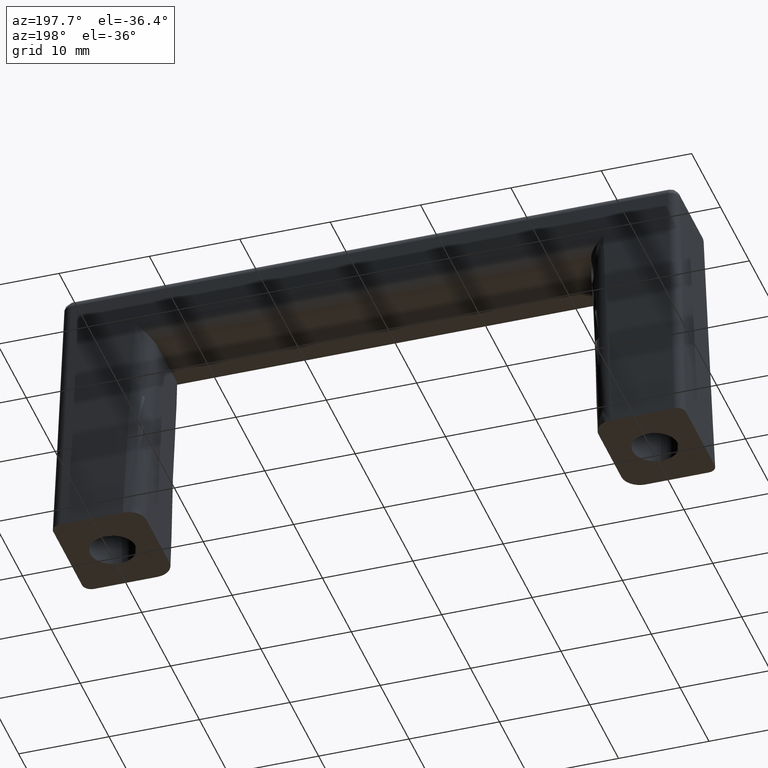
[diagram: clean part render]
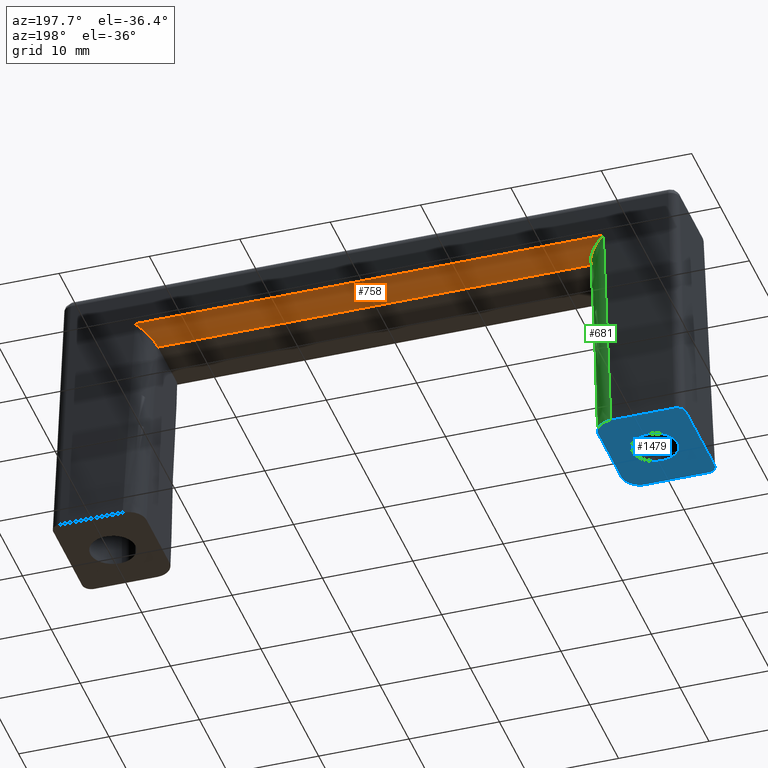
[diagram: same view with three faces highlighted in distinct colors, each labeled with its STEP entity id]
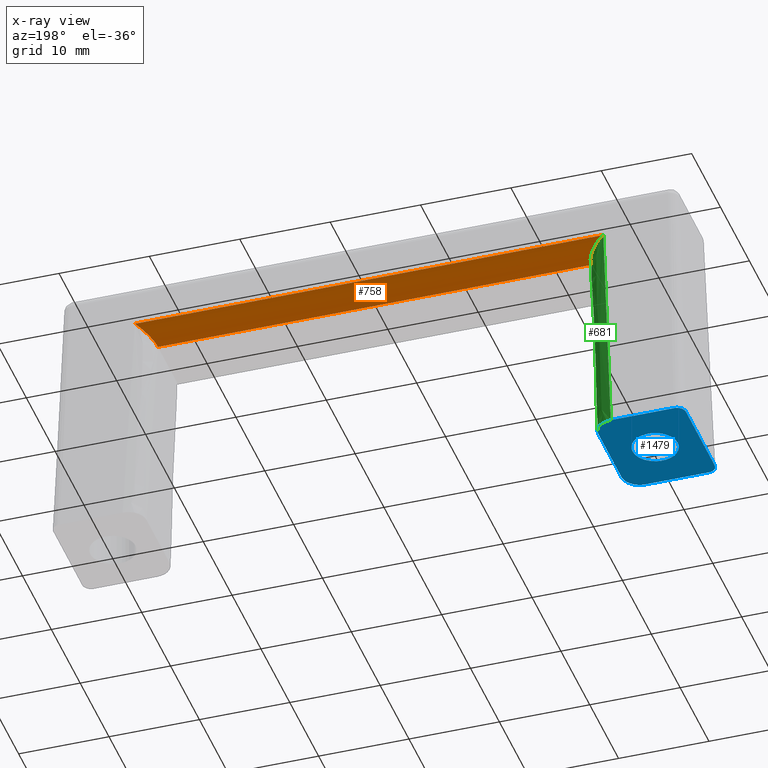
[diagram: x-ray of the same camera — body ghosted, the three highlighted faces saturated]
A machine part, auxiliary view with three faces highlighted in distinct colors.
The next image is the same camera in x-ray (body ghosted, the three faces saturated) — at least one of them is partly hidden behind the body in this view.
Their STEP definitions:

[orange] entity #758 — the highlighted face is a freeform B-spline surface patch.
#631=CARTESIAN_POINT('',(-25.914932944908202,5.164243686676070,25.066645707369648));
#632=VERTEX_POINT('',#631);
#633=CARTESIAN_POINT('',(-23.999955810935749,3.229106748411130,23.001016348478050));
#634=VERTEX_POINT('',#633);
#635=CARTESIAN_POINT('',(-25.914932944908202,5.164243686676070,25.066645707369648));
#636=CARTESIAN_POINT('',(-25.120910515298743,5.191877430314301,24.237830973333875));
#637=CARTESIAN_POINT('',(-24.559858508459222,4.624918929734604,23.632640718041969));
#638=CARTESIAN_POINT('',(-23.998806501619686,4.057960429154906,23.027450462750064));
#639=CARTESIAN_POINT('',(-23.999955810935749,3.229106748411130,23.001016348478050));
#647=(BOUNDED_CURVE()B_SPLINE_CURVE(2,(#635,#636,#637,#638,#639),.UNSPECIFIED.,.F.,.U.)B_SPLINE_CURVE_WITH_KNOTS((3,2,3),(0.0,0.500000000000000,1.0),.UNSPECIFIED.)CURVE()GEOMETRIC_REPRESENTATION_ITEM()RATIONAL_B_SPLINE_CURVE((1.0,0.923741001655843,1.0,0.923741001655843,1.0))REPRESENTATION_ITEM(''));
#648=EDGE_CURVE('',#632,#634,#647,.T.);
#682=CARTESIAN_POINT('',(-27.210679592153610,5.161624004522798,25.122097079069711));
#683=CARTESIAN_POINT('',(27.243073258334590,5.161624004522798,25.122097079069711));
#684=CARTESIAN_POINT('',(-27.210679592153607,5.301085038052120,22.841929336317779));
#685=CARTESIAN_POINT('',(27.243073258334597,5.301085038052120,22.841929336317779));
#686=CARTESIAN_POINT('',(-27.210679592153610,3.022491891252872,23.005108949992415));
#687=CARTESIAN_POINT('',(27.243073258334594,3.022491891252872,23.005108949992415));
#695=(BOUNDED_SURFACE()B_SPLINE_SURFACE(1,2,((#682,#684,#686),(#683,#685,#687)),.UNSPECIFIED.,.F.,.F.,.U.)B_SPLINE_SURFACE_WITH_KNOTS((2,2),(3,3),(0.0,54.453752850488200),(0.0,3.628798131999762),.UNSPECIFIED.)GEOMETRIC_REPRESENTATION_ITEM()RATIONAL_B_SPLINE_SURFACE(((1.0,0.657662365586258,0.996808275235444),(1.0,0.657662365586258,0.996808275235444)))REPRESENTATION_ITEM('')SURFACE());
#696=CARTESIAN_POINT('',(-24.0,3.165354407679065,23.0));
#697=VERTEX_POINT('',#696);
#698=CARTESIAN_POINT('',(24.0,3.165354407679065,23.0));
#699=VERTEX_POINT('',#698);
#700=CARTESIAN_POINT('',(-24.0,3.165354407679065,23.0));
#701=CARTESIAN_POINT('',(24.0,3.165354407679065,23.0));
#702=QUASI_UNIFORM_CURVE('',1,(#700,#701),.UNSPECIFIED.,.F.,.U.);
#703=EDGE_CURVE('',#697,#699,#702,.T.);
#704=ORIENTED_EDGE('',*,*,#703,.F.);
#705=CARTESIAN_POINT('',(-23.999955810935749,3.229106748411130,23.001016348478050));
#706=CARTESIAN_POINT('',(-23.999999999928527,3.197238731033887,23.000000001645841));
#707=CARTESIAN_POINT('',(-24.0,3.165354407679065,23.0));
#715=(BOUNDED_CURVE()B_SPLINE_CURVE(2,(#705,#706,#707),.UNSPECIFIED.,.F.,.U.)CURVE()GEOMETRIC_REPRESENTATION_ITEM()QUASI_UNIFORM_CURVE()RATIONAL_B_SPLINE_CURVE((1.0,0.999872948781787,1.0))REPRESENTATION_ITEM(''));
#716=EDGE_CURVE('',#634,#697,#715,.T.);
#717=ORIENTED_EDGE('',*,*,#716,.F.);
#718=ORIENTED_EDGE('',*,*,#648,.F.);
#719=CARTESIAN_POINT('',(25.914932944908049,5.164243686676070,25.066645707369648));
#720=VERTEX_POINT('',#719);
#721=CARTESIAN_POINT('',(25.914932944908049,5.164243686676070,25.066645707369648));
#722=CARTESIAN_POINT('',(-25.914932944908202,5.164243686676070,25.066645707369648));
#723=QUASI_UNIFORM_CURVE('',1,(#721,#722),.UNSPECIFIED.,.F.,.U.);
#724=EDGE_CURVE('',#720,#632,#723,.T.);
#725=ORIENTED_EDGE('',*,*,#724,.F.);
#726=CARTESIAN_POINT('',(23.999955810935749,3.229106748411130,23.001016348478050));
#727=VERTEX_POINT('',#726);
#728=CARTESIAN_POINT('',(25.914932944908049,5.164243686676070,25.066645707369648));
#729=CARTESIAN_POINT('',(25.120910515298547,5.191877430314301,24.237830973333875));
#730=CARTESIAN_POINT('',(24.559858508459019,4.624918929734604,23.632640718041969));
#731=CARTESIAN_POINT('',(23.998806501619509,4.057960429154906,23.027450462750064));
#732=CARTESIAN_POINT('',(23.999955810935749,3.229106748411130,23.001016348478050));
#740=(BOUNDED_CURVE()B_SPLINE_CURVE(2,(#728,#729,#730,#731,#732),.UNSPECIFIED.,.F.,.U.)B_SPLINE_CURVE_WITH_KNOTS((3,2,3),(0.0,0.500000000000000,1.0),.UNSPECIFIED.)CURVE()GEOMETRIC_REPRESENTATION_ITEM()RATIONAL_B_SPLINE_CURVE((1.0,0.923741001655843,1.0,0.923741001655843,1.0))REPRESENTATION_ITEM(''));
#741=EDGE_CURVE('',#720,#727,#740,.T.);
#742=ORIENTED_EDGE('',*,*,#741,.T.);
#743=CARTESIAN_POINT('',(23.999999999999979,3.165354407679065,23.0));
#744=CARTESIAN_POINT('',(23.999999999999986,3.197238679424541,23.0));
#745=CARTESIAN_POINT('',(23.999955810935749,3.229106748411130,23.001016348478050));
#753=(BOUNDED_CURVE()B_SPLINE_CURVE(2,(#743,#744,#745),.UNSPECIFIED.,.F.,.U.)CURVE()GEOMETRIC_REPRESENTATION_ITEM()QUASI_UNIFORM_CURVE()RATIONAL_B_SPLINE_CURVE((1.0,0.999872948367296,1.0))REPRESENTATION_ITEM(''));
#754=EDGE_CURVE('',#699,#727,#753,.T.);
#755=ORIENTED_EDGE('',*,*,#754,.F.);
#756=EDGE_LOOP('',(#704,#717,#718,#725,#742,#755));
#757=FACE_OUTER_BOUND('',#756,.T.);
#758=ADVANCED_FACE('',(#757),#695,.T.);

[blue] entity #1479 — the highlighted face is a freeform B-spline surface patch.
#271=CARTESIAN_POINT('',(-30.295085586704101,2.482523815901765,-3.407314E-016));
#272=VERTEX_POINT('',#271);
#278=CARTESIAN_POINT('',(-27.500000000000000,-7.105427E-015,0.0));
#279=VERTEX_POINT('',#278);
#280=CARTESIAN_POINT('',(-30.295085586704101,2.482523815901765,-3.407314E-016));
#281=CARTESIAN_POINT('',(-30.148060299192633,2.499999999999994,0.0));
#282=CARTESIAN_POINT('',(-30.0,2.499999999999993,0.0));
#283=CARTESIAN_POINT('',(-27.500000000000004,2.499999999999993,0.0));
#284=CARTESIAN_POINT('',(-27.500000000000000,-7.105427E-015,0.0));
#292=(BOUNDED_CURVE()B_SPLINE_CURVE(2,(#280,#281,#282,#283,#284),.UNSPECIFIED.,.F.,.U.)B_SPLINE_CURVE_WITH_KNOTS((3,2,3),(0.229562473507176,0.250000000000000,0.500000000000000),.UNSPECIFIED.)CURVE()GEOMETRIC_REPRESENTATION_ITEM()RATIONAL_B_SPLINE_CURVE((0.956026754171287,0.976055948323726,1.0,0.707106781186548,1.0))REPRESENTATION_ITEM(''));
#293=EDGE_CURVE('',#272,#279,#292,.T.);
#295=CARTESIAN_POINT('',(-29.847383236863131,-2.495337276519659,3.885781E-016));
#296=VERTEX_POINT('',#295);
#297=CARTESIAN_POINT('',(-27.500000000000000,-7.105427E-015,0.0));
#298=CARTESIAN_POINT('',(-27.499999999999996,-2.351769497200905,0.0));
#299=CARTESIAN_POINT('',(-29.847383236863131,-2.495337276519660,3.885781E-016));
#307=(BOUNDED_CURVE()B_SPLINE_CURVE(2,(#297,#298,#299),.UNSPECIFIED.,.F.,.U.)B_SPLINE_CURVE_WITH_KNOTS((3,3),(0.500000000000000,0.739333279332626),.UNSPECIFIED.)CURVE()GEOMETRIC_REPRESENTATION_ITEM()RATIONAL_B_SPLINE_CURVE((1.0,0.719603621788352,0.976072721259783))REPRESENTATION_ITEM(''));
#308=EDGE_CURVE('',#279,#296,#307,.T.);
#382=CARTESIAN_POINT('',(-32.500000000000000,-7.105427E-015,0.0));
#383=VERTEX_POINT('',#382);
#384=CARTESIAN_POINT('',(-29.847383236863131,-2.495337276519659,3.885781E-016));
#385=CARTESIAN_POINT('',(-29.923620391032269,-2.500000000000007,0.0));
#386=CARTESIAN_POINT('',(-30.0,-2.500000000000007,0.0));
#387=CARTESIAN_POINT('',(-32.500000000000007,-2.500000000000007,0.0));
#388=CARTESIAN_POINT('',(-32.500000000000000,-7.105427E-015,0.0));
#396=(BOUNDED_CURVE()B_SPLINE_CURVE(2,(#384,#385,#386,#387,#388),.UNSPECIFIED.,.F.,.U.)B_SPLINE_CURVE_WITH_KNOTS((3,2,3),(0.739333279332625,0.750000000000000,1.0),.UNSPECIFIED.)CURVE()GEOMETRIC_REPRESENTATION_ITEM()RATIONAL_B_SPLINE_CURVE((0.976072721259783,0.987503159398195,1.0,0.707106781186548,1.0))REPRESENTATION_ITEM(''));
#397=EDGE_CURVE('',#296,#383,#396,.T.);
#399=CARTESIAN_POINT('',(-32.500000000000000,-7.105427E-015,0.0));
#400=CARTESIAN_POINT('',(-32.500000000000000,2.220436314766362,0.0));
#401=CARTESIAN_POINT('',(-30.295085586704101,2.482523815901765,-3.407314E-016));
#409=(BOUNDED_CURVE()B_SPLINE_CURVE(2,(#399,#400,#401),.UNSPECIFIED.,.F.,.U.)B_SPLINE_CURVE_WITH_KNOTS((3,3),(0.0,0.229562473507176),.UNSPECIFIED.)CURVE()GEOMETRIC_REPRESENTATION_ITEM()RATIONAL_B_SPLINE_CURVE((1.0,0.731050832862822,0.956026754171287))REPRESENTATION_ITEM(''));
#410=EDGE_CURVE('',#383,#272,#409,.T.);
#461=CARTESIAN_POINT('',(-27.004787106098050,-6.0,0.0));
#462=VERTEX_POINT('',#461);
#468=CARTESIAN_POINT('',(-25.0,-3.995992148656645,0.0));
#469=VERTEX_POINT('',#468);
#470=CARTESIAN_POINT('',(-25.000000000000011,-3.995992148656652,0.0));
#471=CARTESIAN_POINT('',(-25.000000000000025,-4.825727232130540,0.0));
#472=CARTESIAN_POINT('',(-25.587364690834129,-5.412863616065280,0.0));
#473=CARTESIAN_POINT('',(-26.174729381668225,-6.000000000000020,0.0));
#474=CARTESIAN_POINT('',(-27.004787106098071,-6.000000000000018,0.0));
#482=(BOUNDED_CURVE()B_SPLINE_CURVE(2,(#470,#471,#472,#473,#474),.UNSPECIFIED.,.F.,.U.)B_SPLINE_CURVE_WITH_KNOTS((3,2,3),(0.0,0.500000000000000,1.0),.UNSPECIFIED.)CURVE()GEOMETRIC_REPRESENTATION_ITEM()RATIONAL_B_SPLINE_CURVE((1.0,0.923740992976639,1.0,0.923740992976639,1.0))REPRESENTATION_ITEM(''));
#483=EDGE_CURVE('',#469,#462,#482,.T.);
#650=CARTESIAN_POINT('',(-25.0,3.995992148656645,0.0));
#651=VERTEX_POINT('',#650);
#657=CARTESIAN_POINT('',(-27.004787106098199,6.0,0.0));
#658=VERTEX_POINT('',#657);
#659=CARTESIAN_POINT('',(-27.004787106098199,6.000000000000003,0.0));
#660=CARTESIAN_POINT('',(-26.174729381668300,5.999999999999995,0.0));
#661=CARTESIAN_POINT('',(-25.587364690834200,5.412863616065188,0.0));
#662=CARTESIAN_POINT('',(-25.000000000000107,4.825727232130380,0.0));
#663=CARTESIAN_POINT('',(-25.0,3.995992148656645,0.0));
#671=(BOUNDED_CURVE()B_SPLINE_CURVE(2,(#659,#660,#661,#662,#663),.UNSPECIFIED.,.F.,.U.)B_SPLINE_CURVE_WITH_KNOTS((3,2,3),(0.0,0.500000000000000,1.0),.UNSPECIFIED.)CURVE()GEOMETRIC_REPRESENTATION_ITEM()RATIONAL_B_SPLINE_CURVE((1.0,0.923740992976635,1.0,0.923740992976635,1.0))REPRESENTATION_ITEM(''));
#672=EDGE_CURVE('',#658,#651,#671,.T.);
#820=CARTESIAN_POINT('',(-34.000555360477847,-6.0,0.0));
#821=VERTEX_POINT('',#820);
#822=CARTESIAN_POINT('',(-35.0,-5.000555131204679,0.0));
#823=VERTEX_POINT('',#822);
#824=CARTESIAN_POINT('',(-34.000555360477890,-5.999999999999956,0.0));
#825=CARTESIAN_POINT('',(-35.000000000000092,-5.999999999999909,0.0));
#826=CARTESIAN_POINT('',(-35.000000000000043,-5.000555131204645,0.0));
#834=(BOUNDED_CURVE()B_SPLINE_CURVE(2,(#824,#825,#826),.UNSPECIFIED.,.F.,.U.)CURVE()GEOMETRIC_REPRESENTATION_ITEM()QUASI_UNIFORM_CURVE()RATIONAL_B_SPLINE_CURVE((1.0,0.707499181415883,1.0))REPRESENTATION_ITEM(''));
#835=EDGE_CURVE('',#821,#823,#834,.T.);
#1301=CARTESIAN_POINT('',(-35.0,5.000555131204790,0.0));
#1302=VERTEX_POINT('',#1301);
#1303=CARTESIAN_POINT('',(-34.000555360477847,6.0,0.0));
#1304=VERTEX_POINT('',#1303);
#1305=CARTESIAN_POINT('',(-35.000000000000043,5.000555131204824,0.0));
#1306=CARTESIAN_POINT('',(-34.999999999999957,5.999999999999996,0.0));
#1307=CARTESIAN_POINT('',(-34.000555360477847,5.999999999999996,0.0));
#1315=(BOUNDED_CURVE()B_SPLINE_CURVE(2,(#1305,#1306,#1307),.UNSPECIFIED.,.F.,.U.)CURVE()GEOMETRIC_REPRESENTATION_ITEM()QUASI_UNIFORM_CURVE()RATIONAL_B_SPLINE_CURVE((1.0,0.707499181415916,1.0))REPRESENTATION_ITEM(''));
#1316=EDGE_CURVE('',#1302,#1304,#1315,.T.);
#1407=CARTESIAN_POINT('',(-27.004787106098050,-6.0,0.0));
#1408=CARTESIAN_POINT('',(-34.000555360477847,-6.0,0.0));
#1409=QUASI_UNIFORM_CURVE('',1,(#1407,#1408),.UNSPECIFIED.,.F.,.U.);
#1410=EDGE_CURVE('',#462,#821,#1409,.T.);
#1433=CARTESIAN_POINT('',(-27.004787106098199,6.0,0.0));
#1434=CARTESIAN_POINT('',(-34.000555360477847,6.0,0.0));
#1435=QUASI_UNIFORM_CURVE('',1,(#1433,#1434),.UNSPECIFIED.,.F.,.U.);
#1436=EDGE_CURVE('',#658,#1304,#1435,.T.);
#1450=CARTESIAN_POINT('',(-35.499499980618047,-6.599399976741672,0.0));
#1451=CARTESIAN_POINT('',(-24.500499751161041,-6.599399976741672,0.0));
#1452=CARTESIAN_POINT('',(-35.499499980618047,6.599400298606754,0.0));
#1453=CARTESIAN_POINT('',(-24.500499751161041,6.599400298606754,0.0));
#1454=B_SPLINE_SURFACE_WITH_KNOTS('',1,1,((#1450,#1452),(#1451,#1453)),.UNSPECIFIED.,.F.,.F.,.U.,(2,2),(2,2),(0.0,10.999000229457010),(0.0,13.198800275348431),.UNSPECIFIED.);
#1455=CARTESIAN_POINT('',(-25.0,3.995992148656645,0.0));
#1456=CARTESIAN_POINT('',(-25.0,-3.995992148656645,0.0));
#1457=QUASI_UNIFORM_CURVE('',1,(#1455,#1456),.UNSPECIFIED.,.F.,.U.);
#1458=EDGE_CURVE('',#651,#469,#1457,.T.);
#1459=ORIENTED_EDGE('',*,*,#1458,.T.);
#1460=ORIENTED_EDGE('',*,*,#483,.T.);
#1461=ORIENTED_EDGE('',*,*,#1410,.T.);
#1462=ORIENTED_EDGE('',*,*,#835,.T.);
#1463=CARTESIAN_POINT('',(-35.0,5.000555131204790,0.0));
#1464=CARTESIAN_POINT('',(-35.0,-5.000555131204679,0.0));
#1465=QUASI_UNIFORM_CURVE('',1,(#1463,#1464),.UNSPECIFIED.,.F.,.U.);
#1466=EDGE_CURVE('',#1302,#823,#1465,.T.);
#1467=ORIENTED_EDGE('',*,*,#1466,.F.);
#1468=ORIENTED_EDGE('',*,*,#1316,.T.);
#1469=ORIENTED_EDGE('',*,*,#1436,.F.);
#1470=ORIENTED_EDGE('',*,*,#672,.T.);
#1471=EDGE_LOOP('',(#1459,#1460,#1461,#1462,#1467,#1468,#1469,#1470));
#1472=FACE_OUTER_BOUND('',#1471,.T.);
#1473=ORIENTED_EDGE('',*,*,#308,.F.);
#1474=ORIENTED_EDGE('',*,*,#293,.F.);
#1475=ORIENTED_EDGE('',*,*,#410,.F.);
#1476=ORIENTED_EDGE('',*,*,#397,.F.);
#1477=EDGE_LOOP('',(#1473,#1474,#1475,#1476));
#1478=FACE_BOUND('',#1477,.T.);
#1479=ADVANCED_FACE('',(#1472,#1478),#1454,.F.);

[green] entity #681 — the highlighted face is a freeform B-spline surface patch.
#617=CARTESIAN_POINT('',(-27.116300472743660,6.018993500121923,-0.623065721724003));
#618=CARTESIAN_POINT('',(-25.971272444643422,5.140927023435969,25.712578924581251));
#619=CARTESIAN_POINT('',(-24.878752728789120,6.116718858752241,-0.717092108887169));
#620=CARTESIAN_POINT('',(-23.733724700688885,5.238652382066287,25.618552537418108));
#621=CARTESIAN_POINT('',(-25.039043495957941,3.881823868725985,-0.784637406239556));
#622=CARTESIAN_POINT('',(-23.894015467857709,3.003757392040036,25.551007240065712));
#630=(BOUNDED_SURFACE()B_SPLINE_SURFACE(1,2,((#617,#619,#621),(#618,#620,#622)),.UNSPECIFIED.,.F.,.F.,.U.)B_SPLINE_SURFACE_WITH_KNOTS((2,2),(3,3),(0.0,26.375144906883119),(0.0,3.583656446260334),.UNSPECIFIED.)GEOMETRIC_REPRESENTATION_ITEM()RATIONAL_B_SPLINE_SURFACE(((1.0,0.664497891295788,0.996265217836209),(1.0,0.664497891295788,0.996265217836209)))REPRESENTATION_ITEM('')SURFACE());
#631=CARTESIAN_POINT('',(-25.914932944908202,5.164243686676070,25.066645707369648));
#632=VERTEX_POINT('',#631);
#633=CARTESIAN_POINT('',(-23.999955810935749,3.229106748411130,23.001016348478050));
#634=VERTEX_POINT('',#633);
#635=CARTESIAN_POINT('',(-25.914932944908202,5.164243686676070,25.066645707369648));
#636=CARTESIAN_POINT('',(-25.120910515298743,5.191877430314301,24.237830973333875));
#637=CARTESIAN_POINT('',(-24.559858508459222,4.624918929734604,23.632640718041969));
#638=CARTESIAN_POINT('',(-23.998806501619686,4.057960429154906,23.027450462750064));
#639=CARTESIAN_POINT('',(-23.999955810935749,3.229106748411130,23.001016348478050));
#647=(BOUNDED_CURVE()B_SPLINE_CURVE(2,(#635,#636,#637,#638,#639),.UNSPECIFIED.,.F.,.U.)B_SPLINE_CURVE_WITH_KNOTS((3,2,3),(0.0,0.500000000000000,1.0),.UNSPECIFIED.)CURVE()GEOMETRIC_REPRESENTATION_ITEM()RATIONAL_B_SPLINE_CURVE((1.0,0.923741001655843,1.0,0.923741001655843,1.0))REPRESENTATION_ITEM(''));
#648=EDGE_CURVE('',#632,#634,#647,.T.);
#649=ORIENTED_EDGE('',*,*,#648,.T.);
#650=CARTESIAN_POINT('',(-25.0,3.995992148656645,0.0));
#651=VERTEX_POINT('',#650);
#652=CARTESIAN_POINT('',(-25.0,3.995992148656645,0.0));
#653=CARTESIAN_POINT('',(-23.999955810935749,3.229106748411130,23.001016348478050));
#654=QUASI_UNIFORM_CURVE('',1,(#652,#653),.UNSPECIFIED.,.F.,.U.);
#655=EDGE_CURVE('',#651,#634,#654,.T.);
#656=ORIENTED_EDGE('',*,*,#655,.F.);
#657=CARTESIAN_POINT('',(-27.004787106098199,6.0,0.0));
#658=VERTEX_POINT('',#657);
#659=CARTESIAN_POINT('',(-27.004787106098199,6.000000000000003,0.0));
#660=CARTESIAN_POINT('',(-26.174729381668300,5.999999999999995,0.0));
#661=CARTESIAN_POINT('',(-25.587364690834200,5.412863616065188,0.0));
#662=CARTESIAN_POINT('',(-25.000000000000107,4.825727232130380,0.0));
#663=CARTESIAN_POINT('',(-25.0,3.995992148656645,0.0));
#671=(BOUNDED_CURVE()B_SPLINE_CURVE(2,(#659,#660,#661,#662,#663),.UNSPECIFIED.,.F.,.U.)B_SPLINE_CURVE_WITH_KNOTS((3,2,3),(0.0,0.500000000000000,1.0),.UNSPECIFIED.)CURVE()GEOMETRIC_REPRESENTATION_ITEM()RATIONAL_B_SPLINE_CURVE((1.0,0.923740992976635,1.0,0.923740992976635,1.0))REPRESENTATION_ITEM(''));
#672=EDGE_CURVE('',#658,#651,#671,.T.);
#673=ORIENTED_EDGE('',*,*,#672,.F.);
#674=CARTESIAN_POINT('',(-25.914932944908202,5.164243686676070,25.066645707369648));
#675=CARTESIAN_POINT('',(-27.004787106098199,6.0,0.0));
#676=QUASI_UNIFORM_CURVE('',1,(#674,#675),.UNSPECIFIED.,.F.,.U.);
#677=EDGE_CURVE('',#632,#658,#676,.T.);
#678=ORIENTED_EDGE('',*,*,#677,.F.);
#679=EDGE_LOOP('',(#649,#656,#673,#678));
#680=FACE_OUTER_BOUND('',#679,.T.);
#681=ADVANCED_FACE('',(#680),#630,.T.);